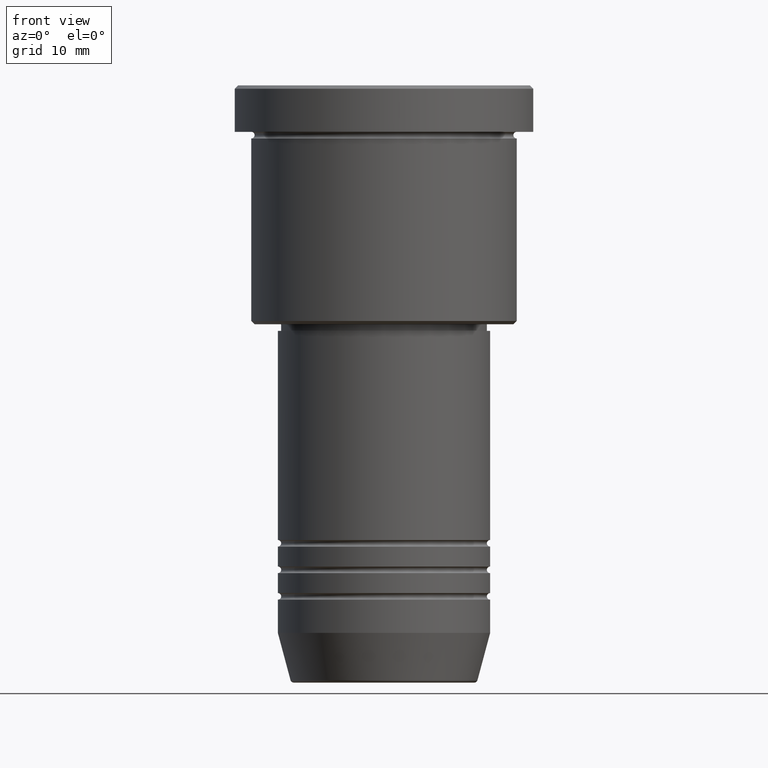
[diagram: clean part render]
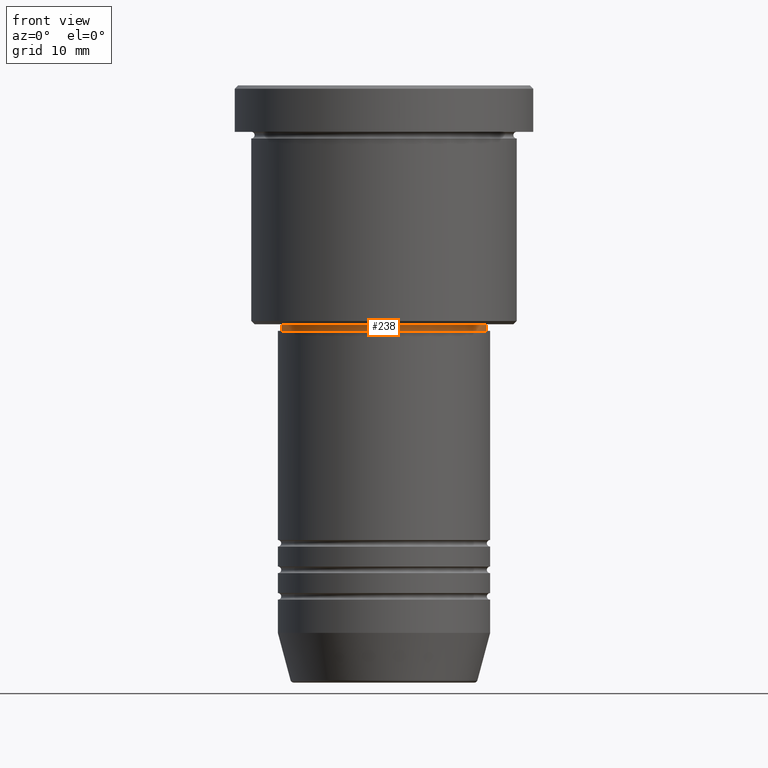
[diagram: same view with one face highlighted and labeled with its STEP entity id]
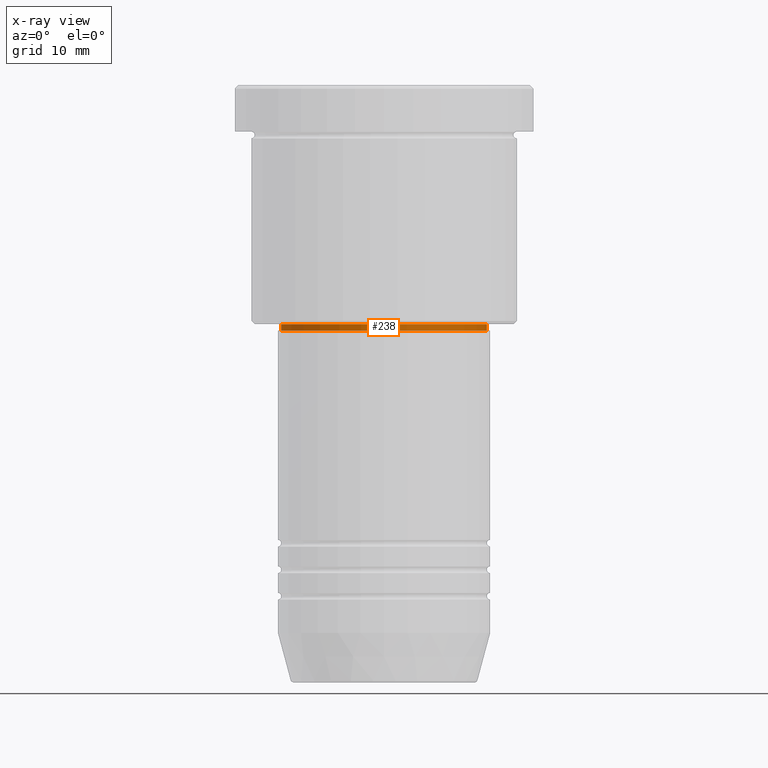
[diagram: x-ray of the same camera — body ghosted, the highlighted face saturated]
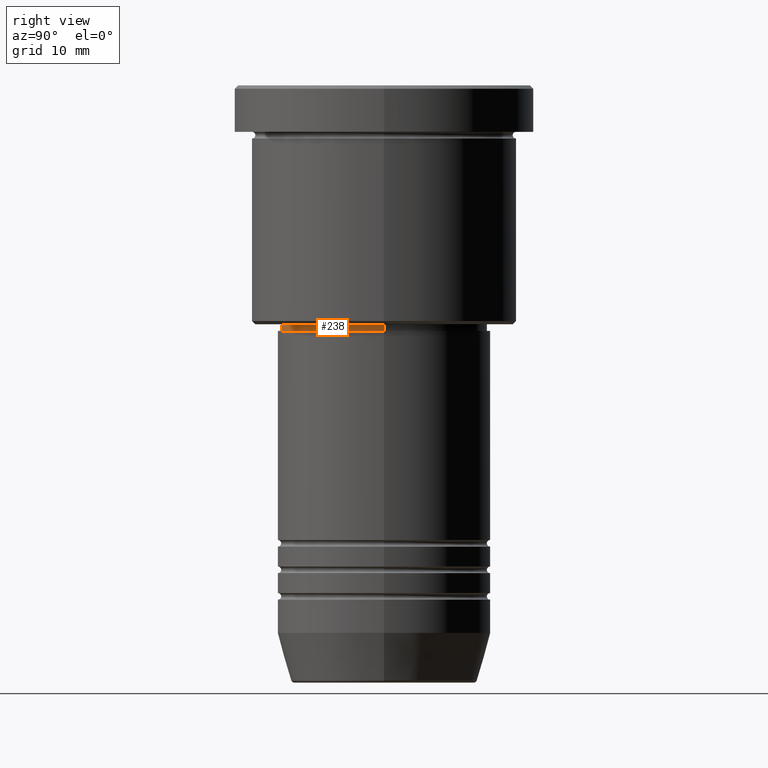
[diagram: same view with one face highlighted and labeled with its STEP entity id]
A machine part, front view. The second image highlights one B-rep face of the part: STEP entity #238.
The next image is the same camera in x-ray: the body ghosted, the highlighted face saturated — about 0% of this face is hidden behind the body in this view.
A second angle (right view) of the same face is appended — the face is thin or edge-on in the first view.
In plain terms, the highlighted cylindrical surface (partial cylindrical patch) has radius 15.5 mm, axis along (-0, -0, 1).
Its self-contained STEP definition (entity closure, byte-faithful):
#52 = CIRCLE ( 'NONE', #1099, 15.50000000000000000 ) ;
#77 = LINE ( 'NONE', #526, #780 ) ;
#104 = CARTESIAN_POINT ( 'NONE',  ( 0.000000000000000000, 0.000000000000000000, -36.00000000000000000 ) ) ;
#171 = ORIENTED_EDGE ( 'NONE', *, *, #834, .F. ) ;
#180 = DIRECTION ( 'NONE',  ( -0.000000000000000000, -0.000000000000000000, 1.000000000000000000 ) ) ;
#190 = CARTESIAN_POINT ( 'NONE',  ( 0.000000000000000000, 0.000000000000000000, 0.000000000000000000 ) ) ;
#222 = AXIS2_PLACEMENT_3D ( 'NONE', #104, #661, #747 ) ;
#238 = ADVANCED_FACE ( 'NONE', ( #802 ), #987, .T. ) ;
#247 = ORIENTED_EDGE ( 'NONE', *, *, #284, .F. ) ;
#284 = EDGE_CURVE ( 'NONE', #559, #629, #1008, .T. ) ;
#290 = DIRECTION ( 'NONE',  ( -0.000000000000000000, -0.000000000000000000, 1.000000000000000000 ) ) ;
#333 = EDGE_CURVE ( 'NONE', #889, #689, #52, .T. ) ;
#334 = VECTOR ( 'NONE', #1117, 1000.000000000000000 ) ;
#386 = EDGE_CURVE ( 'NONE', #689, #629, #1055, .T. ) ;
#458 = DIRECTION ( 'NONE',  ( 1.000000000000000000, 0.000000000000000000, 0.000000000000000000 ) ) ;
#526 = CARTESIAN_POINT ( 'NONE',  ( -15.50000000000000000, 1.898202538678397557E-15, 0.000000000000000000 ) ) ;
#559 = VERTEX_POINT ( 'NONE', #560 ) ;
#560 = CARTESIAN_POINT ( 'NONE',  ( -15.50000000000000000, 1.898202538678397557E-15, -36.00000000000000000 ) ) ;
#569 = CARTESIAN_POINT ( 'NONE',  ( 15.50000000000000000, 0.000000000000000000, -37.00000000000000711 ) ) ;
#629 = VERTEX_POINT ( 'NONE', #770 ) ;
#661 = DIRECTION ( 'NONE',  ( -0.000000000000000000, -0.000000000000000000, 1.000000000000000000 ) ) ;
#685 = AXIS2_PLACEMENT_3D ( 'NONE', #190, #290, #458 ) ;
#689 = VERTEX_POINT ( 'NONE', #569 ) ;
#702 = EDGE_LOOP ( 'NONE', ( #171, #827, #1062, #247 ) ) ;
#747 = DIRECTION ( 'NONE',  ( 1.000000000000000000, 0.000000000000000000, 0.000000000000000000 ) ) ;
#770 = CARTESIAN_POINT ( 'NONE',  ( 15.50000000000000000, 0.000000000000000000, -36.00000000000000000 ) ) ;
#780 = VECTOR ( 'NONE', #1165, 1000.000000000000000 ) ;
#802 = FACE_OUTER_BOUND ( 'NONE', #702, .T. ) ;
#827 = ORIENTED_EDGE ( 'NONE', *, *, #333, .T. ) ;
#834 = EDGE_CURVE ( 'NONE', #889, #559, #77, .T. ) ;
#889 = VERTEX_POINT ( 'NONE', #917 ) ;
#915 = DIRECTION ( 'NONE',  ( 1.000000000000000000, 0.000000000000000000, 0.000000000000000000 ) ) ;
#917 = CARTESIAN_POINT ( 'NONE',  ( -15.50000000000000000, 1.898202538678397557E-15, -37.00000000000000711 ) ) ;
#987 = CYLINDRICAL_SURFACE ( 'NONE', #685, 15.50000000000000000 ) ;
#1007 = CARTESIAN_POINT ( 'NONE',  ( 0.000000000000000000, 0.000000000000000000, -37.00000000000000711 ) ) ;
#1008 = CIRCLE ( 'NONE', #222, 15.50000000000000000 ) ;
#1044 = CARTESIAN_POINT ( 'NONE',  ( 15.50000000000000000, 0.000000000000000000, 0.000000000000000000 ) ) ;
#1055 = LINE ( 'NONE', #1044, #334 ) ;
#1062 = ORIENTED_EDGE ( 'NONE', *, *, #386, .T. ) ;
#1099 = AXIS2_PLACEMENT_3D ( 'NONE', #1007, #180, #915 ) ;
#1117 = DIRECTION ( 'NONE',  ( -0.000000000000000000, -0.000000000000000000, 1.000000000000000000 ) ) ;
#1165 = DIRECTION ( 'NONE',  ( -0.000000000000000000, -0.000000000000000000, 1.000000000000000000 ) ) ;